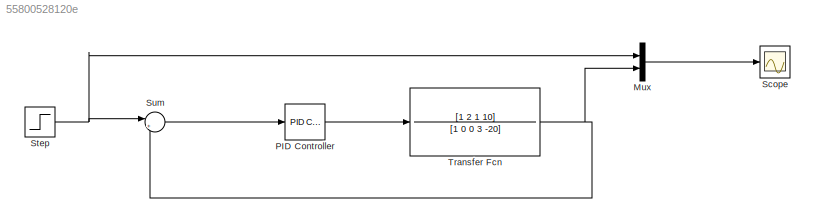
MODEL slx_55800528120e
KIND model
CONFIG AbsTol = auto
CONFIG EnableMultiTasking = off
CONFIG FixedStep = auto
CONFIG MaxStep = auto
CONFIG MinStep = auto
CONFIG RelTol = 1e-3
CONFIG SampleTimeConstraint = Unconstrained
CONFIG SolverName = VariableStepAuto
CONFIG StartTime = 0.0
CONFIG StopTime = 10.0
BLOCK [Mux] Mux
  DisplayOption = bar
  Inputs = 2
BLOCK [Reference] PID Controller  REF=slpidlib/PID Controller
  LibrarySourceBlock = simulink/Continuous/PID Controller
  SourceBlock = slpidlib/PID Controller
  SourceType = PID 1dof
BLOCK [Scope] Scope
  Floating = off
  NumInputPorts = 1
  ScopeSpecificationString = Simulink.scopes.TimeScopeBlockCfg('CurrentConfiguration', extmgr.ConfigurationSet(extmgr.Configuration('Core','General UI',true),extmgr.Configuration('Core','Source UI',true),extmgr.Configuration('Sources','WiredSimulink',true),extmgr.Configuration('Visuals','Time Domain',true,'SerializedDisplays',{struct('MinYLimReal','-594.19252','MaxYLimReal','1091.69898','YLabelReal','','MinYLimMag',' 0.00000'...<+1502ch>
BLOCK [Step] Step
  SampleTime = 0
BLOCK [Sum] Sum
  Inputs = |+-
BLOCK [TransferFcn] Transfer Fcn
  Denominator = [1 0 0 3 -20]
  Numerator = [1 2 1 10]
LINE Mux:1 -> Scope:1
LINE PID Controller:1 -> Transfer Fcn:1
NET Step:1 -> Mux:1, Sum:1
LINE Sum:1 -> PID Controller:1
NET Transfer Fcn:1 -> Mux:2, Sum:2
note: NET lines group one-source signal fan-out (src -> all destinations, sorted); 1:1 wires keep LINE
